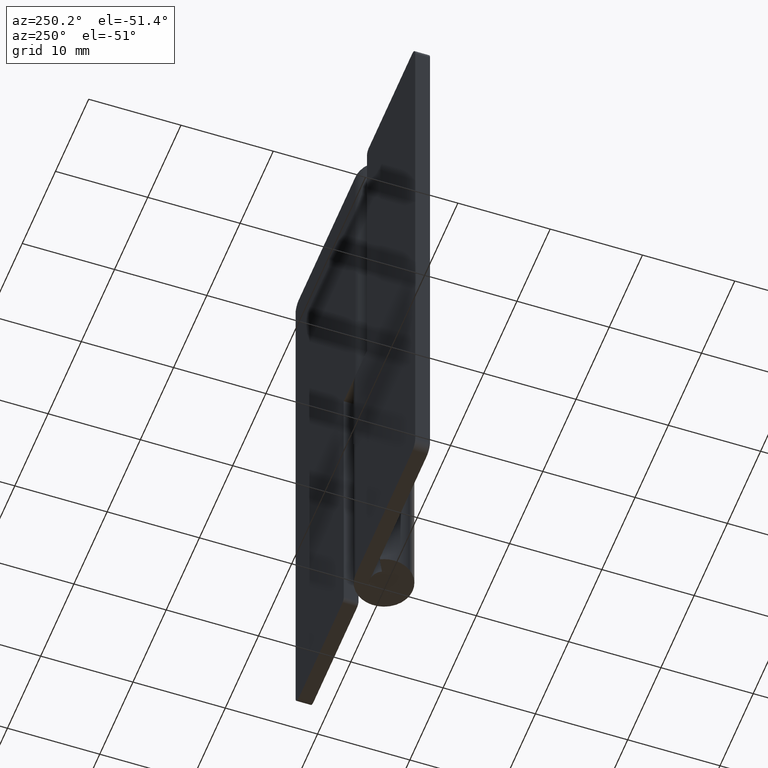
[diagram: clean part render]
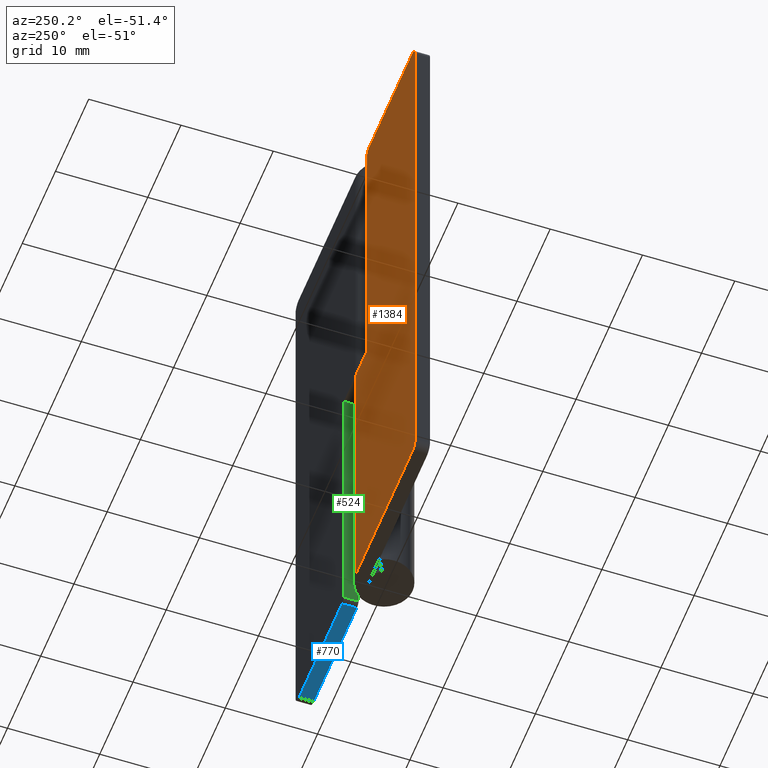
[diagram: same view with three faces highlighted in distinct colors, each labeled with its STEP entity id]
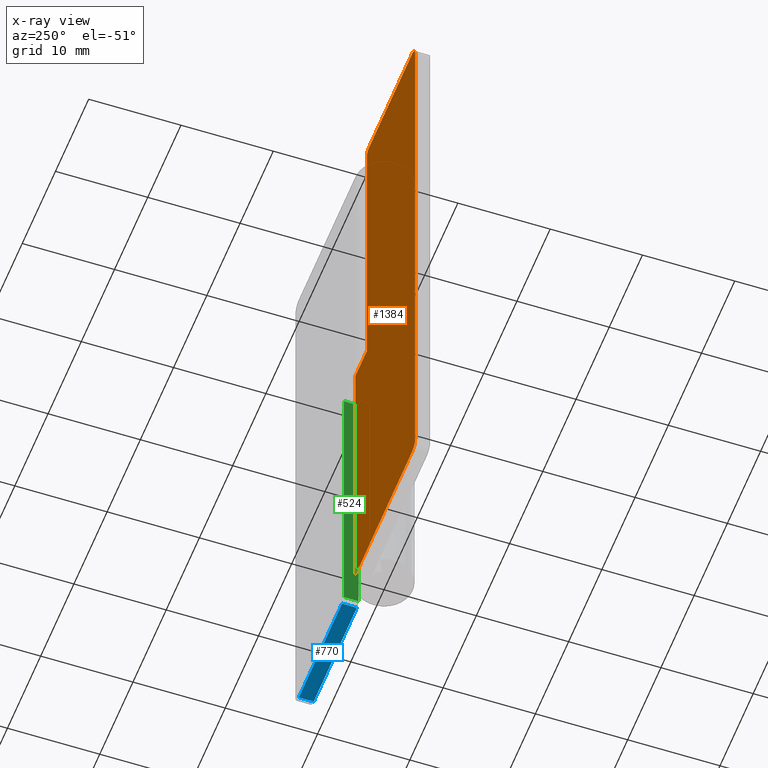
[diagram: x-ray of the same camera — body ghosted, the three highlighted faces saturated]
A machine part, auxiliary view with three faces highlighted in distinct colors.
The next image is the same camera in x-ray (body ghosted, the three faces saturated) — at least one of them is partly hidden behind the body in this view.
Their STEP definitions:

[orange] entity #1384 — the highlighted face is a freeform B-spline surface patch.
#897=CARTESIAN_POINT('',(-17.0,3.099998000000050,65.0));
#898=VERTEX_POINT('',#897);
#904=CARTESIAN_POINT('',(-18.0,3.099998000000050,64.0));
#905=VERTEX_POINT('',#904);
#906=CARTESIAN_POINT('',(-17.0,3.099998000000050,65.0));
#907=CARTESIAN_POINT('',(-18.000000000000007,3.099998000000051,65.0));
#908=CARTESIAN_POINT('',(-18.0,3.099998000000050,64.0));
#916=(BOUNDED_CURVE()B_SPLINE_CURVE(2,(#906,#907,#908),.UNSPECIFIED.,.F.,.U.)CURVE()GEOMETRIC_REPRESENTATION_ITEM()QUASI_UNIFORM_CURVE()RATIONAL_B_SPLINE_CURVE((1.0,0.707106781186548,1.0))REPRESENTATION_ITEM(''));
#917=EDGE_CURVE('',#898,#905,#916,.T.);
#958=CARTESIAN_POINT('',(-18.0,3.099998000000050,1.0));
#959=VERTEX_POINT('',#958);
#965=CARTESIAN_POINT('',(-17.0,3.099998000000000,0.0));
#966=VERTEX_POINT('',#965);
#967=CARTESIAN_POINT('',(-18.0,3.099998000000050,1.0));
#968=CARTESIAN_POINT('',(-18.000000000000007,3.099998000000051,0.0));
#969=CARTESIAN_POINT('',(-17.0,3.099998000000050,0.0));
#977=(BOUNDED_CURVE()B_SPLINE_CURVE(2,(#967,#968,#969),.UNSPECIFIED.,.F.,.U.)CURVE()GEOMETRIC_REPRESENTATION_ITEM()QUASI_UNIFORM_CURVE()RATIONAL_B_SPLINE_CURVE((1.0,0.707106781186548,1.0))REPRESENTATION_ITEM(''));
#978=EDGE_CURVE('',#959,#966,#977,.T.);
#1019=CARTESIAN_POINT('',(-3.500000000000000,3.099998000000050,64.500000000000000));
#1020=VERTEX_POINT('',#1019);
#1026=CARTESIAN_POINT('',(-4.0,3.099998000000050,65.0));
#1027=VERTEX_POINT('',#1026);
#1028=CARTESIAN_POINT('',(-3.500000000000000,3.099998000000050,64.500000000000000));
#1029=CARTESIAN_POINT('',(-3.499999999999999,3.099998000000051,65.0));
#1030=CARTESIAN_POINT('',(-4.0,3.099998000000050,65.0));
#1038=(BOUNDED_CURVE()B_SPLINE_CURVE(2,(#1028,#1029,#1030),.UNSPECIFIED.,.F.,.U.)CURVE()GEOMETRIC_REPRESENTATION_ITEM()QUASI_UNIFORM_CURVE()RATIONAL_B_SPLINE_CURVE((1.0,0.707106781186548,1.0))REPRESENTATION_ITEM(''));
#1039=EDGE_CURVE('',#1020,#1027,#1038,.T.);
#1077=CARTESIAN_POINT('',(-0.003521362805221,3.099998000000050,32.500000000000000));
#1078=VERTEX_POINT('',#1077);
#1084=CARTESIAN_POINT('',(-3.500000000000000,3.099998000000050,32.500000000000000));
#1085=VERTEX_POINT('',#1084);
#1086=CARTESIAN_POINT('',(-0.003521362805221,3.099998000000050,32.500000000000000));
#1087=CARTESIAN_POINT('',(-3.500000000000000,3.099998000000050,32.500000000000000));
#1088=QUASI_UNIFORM_CURVE('',1,(#1086,#1087),.UNSPECIFIED.,.F.,.U.);
#1089=EDGE_CURVE('',#1078,#1085,#1088,.T.);
#1224=CARTESIAN_POINT('',(-0.003521362805221,3.099998000000000,0.0));
#1225=VERTEX_POINT('',#1224);
#1245=CARTESIAN_POINT('',(-0.003521362805221,3.099998000000000,0.0));
#1246=CARTESIAN_POINT('',(-0.003521362805221,3.099998000000050,32.500000000000000));
#1247=QUASI_UNIFORM_CURVE('',1,(#1245,#1246),.UNSPECIFIED.,.F.,.U.);
#1248=EDGE_CURVE('',#1225,#1078,#1247,.T.);
#1274=CARTESIAN_POINT('',(-3.500000000000000,3.099998000000050,32.500000000000000));
#1275=CARTESIAN_POINT('',(-3.500000000000000,3.099998000000050,64.500000000000000));
#1276=QUASI_UNIFORM_CURVE('',1,(#1274,#1275),.UNSPECIFIED.,.F.,.U.);
#1277=EDGE_CURVE('',#1085,#1020,#1276,.T.);
#1300=CARTESIAN_POINT('',(-0.003521362805221,3.099998000000000,0.0));
#1301=CARTESIAN_POINT('',(-17.0,3.099998000000000,0.0));
#1302=QUASI_UNIFORM_CURVE('',1,(#1300,#1301),.UNSPECIFIED.,.F.,.U.);
#1303=EDGE_CURVE('',#1225,#966,#1302,.T.);
#1317=CARTESIAN_POINT('',(-18.0,3.099998000000050,1.0));
#1318=CARTESIAN_POINT('',(-18.0,3.099998000000050,64.0));
#1319=QUASI_UNIFORM_CURVE('',1,(#1317,#1318),.UNSPECIFIED.,.F.,.U.);
#1320=EDGE_CURVE('',#959,#905,#1319,.T.);
#1343=CARTESIAN_POINT('',(-4.0,3.099998000000050,65.0));
#1344=CARTESIAN_POINT('',(-17.0,3.099998000000050,65.0));
#1345=QUASI_UNIFORM_CURVE('',1,(#1343,#1344),.UNSPECIFIED.,.F.,.U.);
#1346=EDGE_CURVE('',#1027,#898,#1345,.T.);
#1368=CARTESIAN_POINT('',(-18.898924073047208,3.099998000000000,-3.246749874017389));
#1369=CARTESIAN_POINT('',(-18.898924073047208,3.099998000000000,68.246751617453242));
#1370=CARTESIAN_POINT('',(0.895403192945163,3.099998000000000,-3.246749874017389));
#1371=CARTESIAN_POINT('',(0.895403192945163,3.099998000000000,68.246751617453242));
#1372=B_SPLINE_SURFACE_WITH_KNOTS('',1,1,((#1368,#1370),(#1369,#1371)),.UNSPECIFIED.,.F.,.F.,.U.,(2,2),(2,2),(0.0,71.493501491470624),(0.0,19.794327265992379),.UNSPECIFIED.);
#1373=ORIENTED_EDGE('',*,*,#1320,.T.);
#1374=ORIENTED_EDGE('',*,*,#917,.F.);
#1375=ORIENTED_EDGE('',*,*,#1346,.F.);
#1376=ORIENTED_EDGE('',*,*,#1039,.F.);
#1377=ORIENTED_EDGE('',*,*,#1277,.F.);
#1378=ORIENTED_EDGE('',*,*,#1089,.F.);
#1379=ORIENTED_EDGE('',*,*,#1248,.F.);
#1380=ORIENTED_EDGE('',*,*,#1303,.T.);
#1381=ORIENTED_EDGE('',*,*,#978,.F.);
#1382=EDGE_LOOP('',(#1373,#1374,#1375,#1376,#1377,#1378,#1379,#1380,#1381));
#1383=FACE_OUTER_BOUND('',#1382,.T.);
#1384=ADVANCED_FACE('',(#1383),#1372,.T.);

[blue] entity #770 — the highlighted face is a freeform B-spline surface patch.
#389=CARTESIAN_POINT('',(17.0,1.500000000000055,0.0));
#390=VERTEX_POINT('',#389);
#406=CARTESIAN_POINT('',(17.0,3.099998000000050,0.0));
#407=VERTEX_POINT('',#406);
#408=CARTESIAN_POINT('',(17.0,3.099998000000050,0.0));
#409=CARTESIAN_POINT('',(17.0,1.500000000000055,0.0));
#410=QUASI_UNIFORM_CURVE('',1,(#408,#409),.UNSPECIFIED.,.F.,.U.);
#411=EDGE_CURVE('',#407,#390,#410,.T.);
#452=CARTESIAN_POINT('',(3.999999999999901,1.500000000000055,0.0));
#453=VERTEX_POINT('',#452);
#474=CARTESIAN_POINT('',(3.999999999999901,3.099998000000050,0.0));
#475=VERTEX_POINT('',#474);
#489=CARTESIAN_POINT('',(3.999999999999901,3.099998000000050,0.0));
#490=CARTESIAN_POINT('',(3.999999999999901,1.500000000000055,0.0));
#491=QUASI_UNIFORM_CURVE('',1,(#489,#490),.UNSPECIFIED.,.F.,.U.);
#492=EDGE_CURVE('',#475,#453,#491,.T.);
#751=CARTESIAN_POINT('',(3.350650025196418,1.420080103001162,0.0));
#752=CARTESIAN_POINT('',(17.649350323490658,1.420080103001162,0.0));
#753=CARTESIAN_POINT('',(3.350650025196418,3.179917939914235,0.0));
#754=CARTESIAN_POINT('',(17.649350323490658,3.179917939914235,0.0));
#755=B_SPLINE_SURFACE_WITH_KNOTS('',1,1,((#751,#753),(#752,#754)),.UNSPECIFIED.,.F.,.F.,.U.,(2,2),(2,2),(0.0,14.298700298294239),(0.041708334948495,0.958291687403247),.UNSPECIFIED.);
#756=ORIENTED_EDGE('',*,*,#411,.T.);
#757=CARTESIAN_POINT('',(17.0,1.500000000000055,0.0));
#758=CARTESIAN_POINT('',(3.999999999999901,1.500000000000055,0.0));
#759=QUASI_UNIFORM_CURVE('',1,(#757,#758),.UNSPECIFIED.,.F.,.U.);
#760=EDGE_CURVE('',#390,#453,#759,.T.);
#761=ORIENTED_EDGE('',*,*,#760,.T.);
#762=ORIENTED_EDGE('',*,*,#492,.F.);
#763=CARTESIAN_POINT('',(3.999999999999901,3.099998000000050,0.0));
#764=CARTESIAN_POINT('',(17.0,3.099998000000050,0.0));
#765=QUASI_UNIFORM_CURVE('',1,(#763,#764),.UNSPECIFIED.,.F.,.U.);
#766=EDGE_CURVE('',#475,#407,#765,.T.);
#767=ORIENTED_EDGE('',*,*,#766,.T.);
#768=EDGE_LOOP('',(#756,#761,#762,#767));
#769=FACE_OUTER_BOUND('',#768,.T.);
#770=ADVANCED_FACE('',(#769),#755,.F.);

[green] entity #524 — the highlighted face is a freeform B-spline surface patch.
#450=CARTESIAN_POINT('',(3.499999999999901,1.500000000000000,0.499999999999945));
#451=VERTEX_POINT('',#450);
#467=CARTESIAN_POINT('',(3.499999999999901,3.099998000000050,0.500000000000000));
#468=VERTEX_POINT('',#467);
#469=CARTESIAN_POINT('',(3.499999999999901,3.099998000000050,0.500000000000000));
#470=CARTESIAN_POINT('',(3.499999999999901,1.500000000000000,0.499999999999945));
#471=QUASI_UNIFORM_CURVE('',1,(#469,#470),.UNSPECIFIED.,.F.,.U.);
#472=EDGE_CURVE('',#468,#451,#471,.T.);
#497=CARTESIAN_POINT('',(3.499999999999901,1.420080103001048,34.098399937977788));
#498=CARTESIAN_POINT('',(3.499999999999901,1.420080103001048,-1.098400796284733));
#499=CARTESIAN_POINT('',(3.499999999999901,3.179917939914239,34.098399937977788));
#500=CARTESIAN_POINT('',(3.499999999999901,3.179917939914239,-1.098400796284733));
#501=B_SPLINE_SURFACE_WITH_KNOTS('',1,1,((#497,#499),(#498,#500)),.UNSPECIFIED.,.F.,.F.,.U.,(2,2),(2,2),(0.0,35.196800734262517),(0.041708334948495,0.958291687403247),.UNSPECIFIED.);
#502=CARTESIAN_POINT('',(3.499999999999901,3.099998000000050,32.500000000000000));
#503=VERTEX_POINT('',#502);
#504=CARTESIAN_POINT('',(3.499999999999901,3.099998000000050,0.500000000000000));
#505=CARTESIAN_POINT('',(3.499999999999901,3.099998000000050,32.500000000000000));
#506=QUASI_UNIFORM_CURVE('',1,(#504,#505),.UNSPECIFIED.,.F.,.U.);
#507=EDGE_CURVE('',#468,#503,#506,.T.);
#508=ORIENTED_EDGE('',*,*,#507,.F.);
#509=ORIENTED_EDGE('',*,*,#472,.T.);
#510=CARTESIAN_POINT('',(3.499999999999901,1.499999999999946,32.500000000000000));
#511=VERTEX_POINT('',#510);
#512=CARTESIAN_POINT('',(3.499999999999901,1.500000000000000,0.499999999999945));
#513=CARTESIAN_POINT('',(3.499999999999901,1.499999999999946,32.500000000000000));
#514=QUASI_UNIFORM_CURVE('',1,(#512,#513),.UNSPECIFIED.,.F.,.U.);
#515=EDGE_CURVE('',#451,#511,#514,.T.);
#516=ORIENTED_EDGE('',*,*,#515,.T.);
#517=CARTESIAN_POINT('',(3.499999999999901,3.099998000000050,32.500000000000000));
#518=CARTESIAN_POINT('',(3.499999999999901,1.499999999999946,32.500000000000000));
#519=QUASI_UNIFORM_CURVE('',1,(#517,#518),.UNSPECIFIED.,.F.,.U.);
#520=EDGE_CURVE('',#503,#511,#519,.T.);
#521=ORIENTED_EDGE('',*,*,#520,.F.);
#522=EDGE_LOOP('',(#508,#509,#516,#521));
#523=FACE_OUTER_BOUND('',#522,.T.);
#524=ADVANCED_FACE('',(#523),#501,.F.);